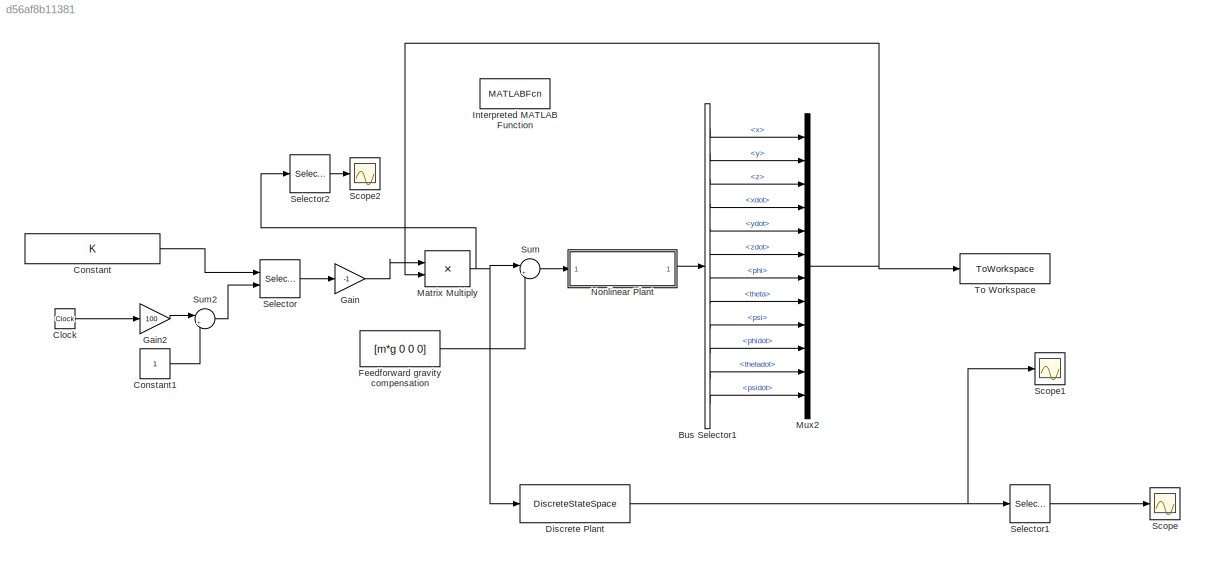
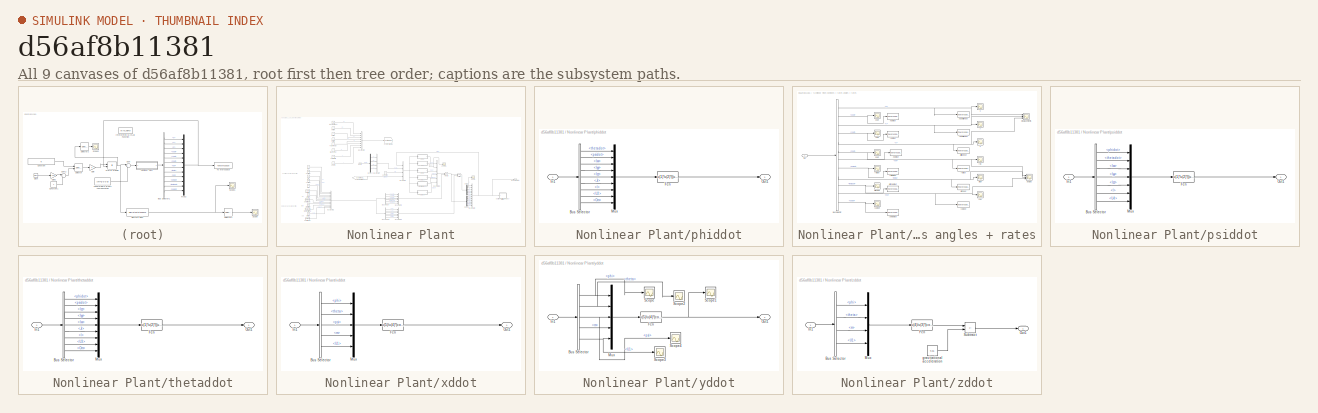
[diagram: thumbnail index - all 9 canvases of the model, root first then tree order]
MODEL slx_d56af8b11381
KIND model
CONFIG AbsTol = auto
CONFIG EnableMultiTasking = off
CONFIG FixedStep = .01
CONFIG MaxStep = auto
CONFIG MinStep = auto
CONFIG RelTol = 1e-3
CONFIG SampleTimeConstraint = Unconstrained
CONFIG Solver = FixedStepAuto
CONFIG SolverName = FixedStepAuto
CONFIG StartTime = 0.0
CONFIG StopTime = 4
BLOCK [BusSelector] Bus Selector1
  OutputSignals = x,y,z,xdot,ydot,zdot,phi,theta,psi,phidot,thetadot,psidot
  Ports = [1, 12]
BLOCK [Clock] Clock
BLOCK [Constant] Constant
  Value = K
BLOCK [Constant] Constant1
BLOCK [DiscreteStateSpace] Discrete Plant
  A = discrete.A
  B = discrete.B
  C = eye(12)
  D = zeros(12,4)
  InitialCondition = x_0_pitchroll
  SampleTime = .01
BLOCK [Constant] Feedforward gravity compensation
  Value = [m*g 0 0 0]
BLOCK [Gain] Gain
  Gain = -1
BLOCK [Gain] Gain2
  Gain = 100
BLOCK [MATLABFcn] Interpreted MATLAB Function
  Commented = on
  MATLABFcn = [g*m/(cos(u(7))*cos(u(8)))*0+m*g, 0, 0, 0]
  OutputDimensions = 4
  Ports = [1, 1]
BLOCK [Product] Matrix Multiply
  Multiplication = Matrix(*)
  Ports = [2, 1]
BLOCK [Mux] Mux2
  DisplayOption = bar
  Inputs = 12
  Ports = [12, 1]
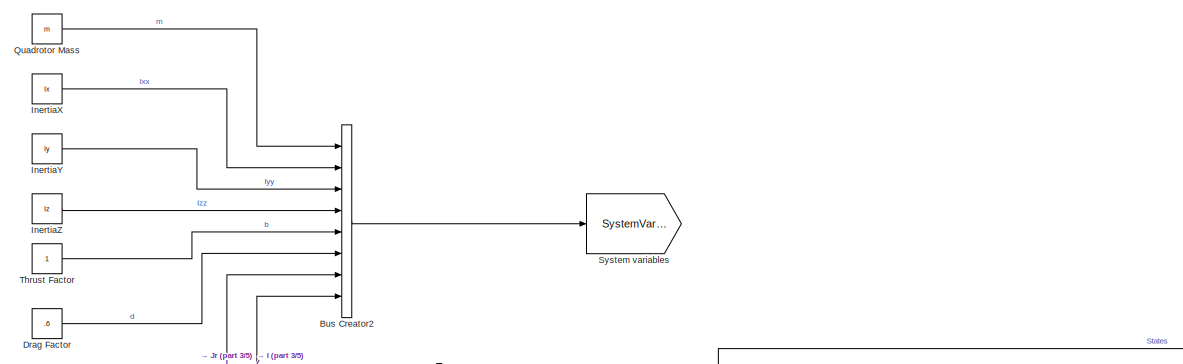
[diagram: Nonlinear Plant - part 1/5, top center region]
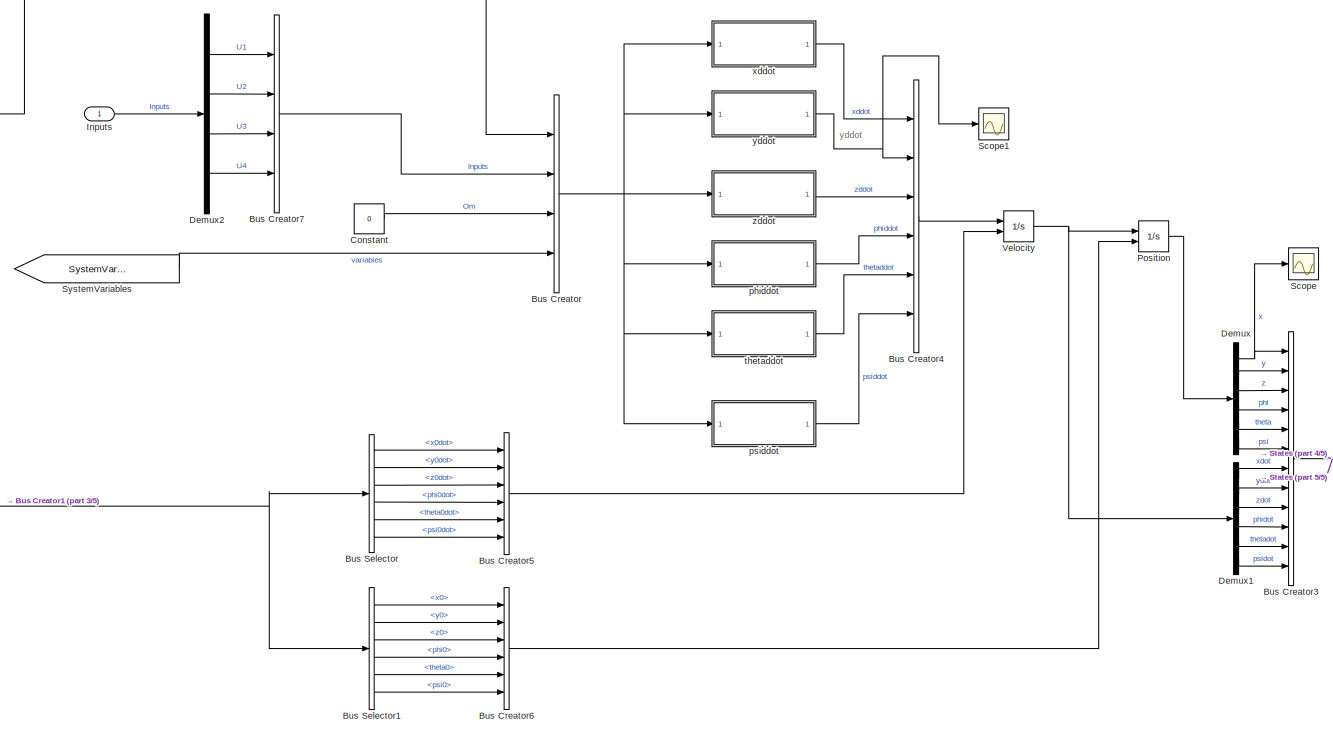
[diagram: Nonlinear Plant - part 2/5, central region]
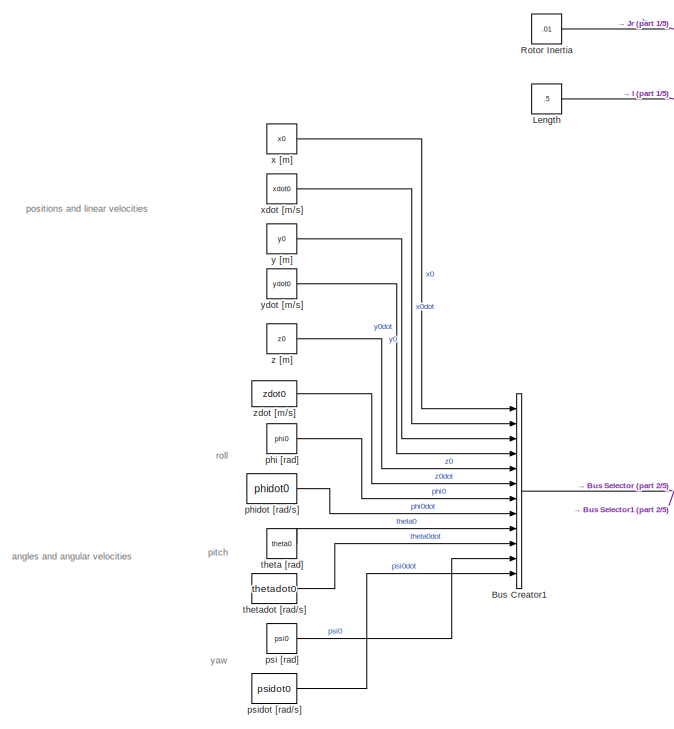
[diagram: Nonlinear Plant - part 3/5, bottom left region]
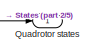
[diagram: Nonlinear Plant - part 4/5, middle right region]
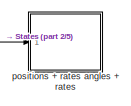
[diagram: Nonlinear Plant - part 5/5, bottom right region]
BLOCK [SubSystem] Nonlinear Plant
  Ports = [1, 1]
  RequestExecContextInheritance = off
BLOCK [BusCreator] Nonlinear Plant/Bus Creator
  DisplayOption = bar
  InheritFromInputs = on
  Inputs = 4
  Ports = [4, 1]
BLOCK [BusCreator] Nonlinear Plant/Bus Creator1
  DisplayOption = bar
  InheritFromInputs = on
  Inputs = 12
  Ports = [12, 1]
BLOCK [BusCreator] Nonlinear Plant/Bus Creator2
  DisplayOption = bar
  InheritFromInputs = on
  Inputs = 8
  Ports = [8, 1]
BLOCK [BusCreator] Nonlinear Plant/Bus Creator3
  DisplayOption = bar
  InheritFromInputs = on
  Inputs = 12
  Ports = [12, 1]
BLOCK [BusCreator] Nonlinear Plant/Bus Creator4
  DisplayOption = bar
  InheritFromInputs = on
  Inputs = 6
  Ports = [6, 1]
BLOCK [BusCreator] Nonlinear Plant/Bus Creator5
  DisplayOption = bar
  InheritFromInputs = on
  Inputs = 6
  Ports = [6, 1]
BLOCK [BusCreator] Nonlinear Plant/Bus Creator6
  DisplayOption = bar
  InheritFromInputs = on
  Inputs = 6
  Ports = [6, 1]
BLOCK [BusCreator] Nonlinear Plant/Bus Creator7
  DisplayOption = bar
  InheritFromInputs = on
  Inputs = 4
  Ports = [4, 1]
BLOCK [BusSelector] Nonlinear Plant/Bus Selector
  OutputSignals = x0dot,y0dot,z0dot,phi0dot,theta0dot,psi0dot
  Ports = [1, 6]
BLOCK [BusSelector] Nonlinear Plant/Bus Selector1
  OutputSignals = x0,y0,z0,phi0,theta0,psi0
  Ports = [1, 6]
BLOCK [Constant] Nonlinear Plant/Constant
  Value = 0
BLOCK [Demux] Nonlinear Plant/Demux
  Outputs = 6
  Ports = [1, 6]
BLOCK [Demux] Nonlinear Plant/Demux1
  Outputs = 6
  Ports = [1, 6]
BLOCK [Demux] Nonlinear Plant/Demux2
  Ports = [1, 4]
BLOCK [Constant] Nonlinear Plant/Drag Factor
  Value = .6
BLOCK [Constant] Nonlinear Plant/InertiaX
  Value = Ix
BLOCK [Constant] Nonlinear Plant/InertiaY
  Value = Iy
BLOCK [Constant] Nonlinear Plant/InertiaZ
  Value = Iz
BLOCK [Inport] Nonlinear Plant/Inputs
BLOCK [Constant] Nonlinear Plant/Length
  Value = .5
BLOCK [Integrator] Nonlinear Plant/Position
  InitialConditionSource = external
  Ports = [2, 1]
BLOCK [Constant] Nonlinear Plant/Quadrotor Mass
  Value = m
BLOCK [Outport] Nonlinear Plant/Quadrotor states
BLOCK [Constant] Nonlinear Plant/Rotor Inertia
  Value = .01
BLOCK [Scope] Nonlinear Plant/Scope
  Floating = off
  NumInputPorts = 1
  Ports = [1]
  ScopeSpecificationString = Simulink.scopes.TimeScopeBlockCfg('CurrentConfiguration', extmgr.ConfigurationSet(extmgr.Configuration('Core','General UI',true),extmgr.Configuration('Core','Source UI',true),extmgr.Configuration('Sources','WiredSimulink',true,'DataLoggingVariableName','ScopeData14'),extmgr.Configuration('Visuals','Time Domain',true,'SerializedDisplays',{struct('MinYLimReal','-12.10129','MaxYLimReal','0.23348','YL...<+1365ch>
BLOCK [Scope] Nonlinear Plant/Scope1
  Floating = off
  NumInputPorts = 1
  Ports = [1]
  ScopeSpecificationString = Simulink.scopes.TimeScopeBlockCfg('CurrentConfiguration', extmgr.ConfigurationSet(extmgr.Configuration('Core','General UI',true),extmgr.Configuration('Core','Source UI',true),extmgr.Configuration('Sources','WiredSimulink',true,'DataLoggingVariableName','ScopeData3'),extmgr.Configuration('Visuals','Time Domain',true,'SerializedDisplays',{struct('MinYLimReal','-11.38911','MaxYLimReal','4.40201','YLa...<+1393ch>
BLOCK [Goto] Nonlinear Plant/System variables
  GotoTag = SystemVariables
  TagVisibility = global
BLOCK [From] Nonlinear Plant/SystemVariables
  GotoTag = SystemVariables
  TagVisibility = global
BLOCK [Constant] Nonlinear Plant/Thrust Factor
BLOCK [Integrator] Nonlinear Plant/Velocity
  InitialConditionSource = external
  Ports = [2, 1]
BLOCK [Constant] Nonlinear Plant/phi [rad]
  Value = phi0
BLOCK [SubSystem] Nonlinear Plant/phiddot
  Ports = [1, 1]
  RequestExecContextInheritance = off
BLOCK [BusSelector] Nonlinear Plant/phiddot/Bus Selector
  OutputSignals = States.thetadot,States.psidot,variables.Ixx,variables.Iyy,variables.Izz,variables.Jr,variables.l,Inputs.U2,Om
  Ports = [1, 9]
BLOCK [Fcn] Nonlinear Plant/phiddot/Fcn
  Expr = u(1)*u(2)*((u(4)-u(5))/u(3))-(u(6)*u(1)*u(9)/u(3))+(u(7)*u(8)/u(3))
BLOCK [Inport] Nonlinear Plant/phiddot/In1
BLOCK [Mux] Nonlinear Plant/phiddot/Mux
  DisplayOption = bar
  Inputs = 9
  Ports = [9, 1]
BLOCK [Outport] Nonlinear Plant/phiddot/Out1
BLOCK [Constant] Nonlinear Plant/phidot [rad//s]
  Value = phidot0
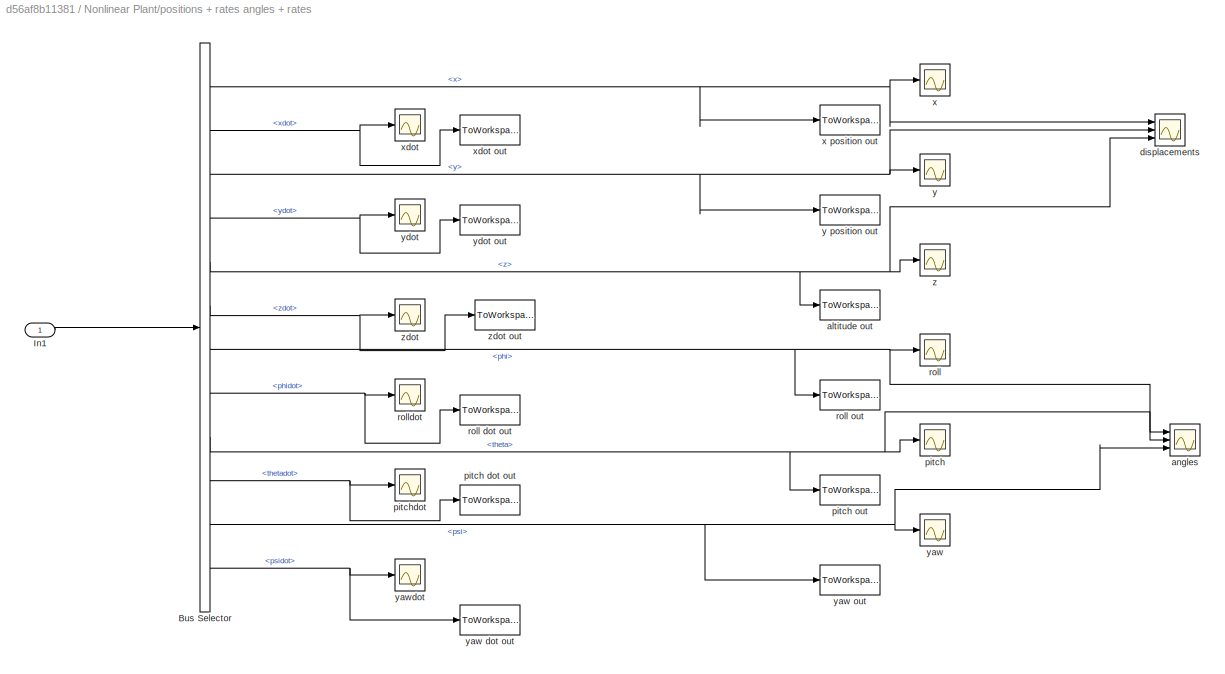
BLOCK [SubSystem] Nonlinear Plant/positions + rates angles + rates
  NameLocation = top
  Ports = [1]
  RequestExecContextInheritance = off
BLOCK [BusSelector] Nonlinear Plant/positions + rates angles + rates/Bus Selector
  OutputSignals = x,xdot,y,ydot,z,zdot,phi,phidot,theta,thetadot,psi,psidot
  Ports = [1, 12]
BLOCK [Inport] Nonlinear Plant/positions + rates angles + rates/In1
BLOCK [ToWorkspace] Nonlinear Plant/positions + rates angles + rates/altitude out
  MaxDataPoints = inf
  Ports = [1]
  SampleTime = -1
  VariableName = z
BLOCK [Scope] Nonlinear Plant/positions + rates angles + rates/angles
  Floating = off
  NumInputPorts = 3
  Ports = [3]
  ScopeSpecificationString = Simulink.scopes.TimeScopeBlockCfg('CurrentConfiguration', extmgr.ConfigurationSet(extmgr.Configuration('Core','General UI',true),extmgr.Configuration('Core','Source UI',true),extmgr.Configuration('Sources','WiredSimulink',true,'DataLoggingVariableName','ScopeData13','DataLoggingSaveFormat','StructureWithTime','DataLoggingDecimation','1','DataLoggingDecimateData',true),extmgr.Configuration('Visuals...<+3084ch>
BLOCK [Scope] Nonlinear Plant/positions + rates angles + rates/displacements
  Floating = off
  NumInputPorts = 3
  Ports = [3]
  ScopeSpecificationString = Simulink.scopes.TimeScopeBlockCfg('CurrentConfiguration', extmgr.ConfigurationSet(extmgr.Configuration('Core','General UI',true),extmgr.Configuration('Core','Source UI',true),extmgr.Configuration('Sources','WiredSimulink',true,'DataLoggingVariableName','ScopeData19','DataLoggingSaveFormat','StructureWithTime','DataLoggingDecimation','1','DataLoggingDecimateData',true),extmgr.Configuration('Visuals...<+3055ch>
BLOCK [Scope] Nonlinear Plant/positions + rates angles + rates/pitch
  Floating = off
  NumInputPorts = 1
  Ports = [1]
  ScopeSpecificationString = Simulink.scopes.TimeScopeBlockCfg('CurrentConfiguration', extmgr.ConfigurationSet(extmgr.Configuration('Core','General UI',true),extmgr.Configuration('Core','Source UI',true),extmgr.Configuration('Sources','WiredSimulink',true,'DataLoggingVariableName','ScopeData1','DataLoggingSaveFormat','StructureWithTime','DataLoggingDecimation','1','DataLoggingDecimateData',true),extmgr.Configuration('Visuals'...<+1736ch>
BLOCK [ToWorkspace] Nonlinear Plant/positions + rates angles + rates/pitch dot out
  MaxDataPoints = inf
  Ports = [1]
  SampleTime = -1
  VariableName = dotpitch
BLOCK [ToWorkspace] Nonlinear Plant/positions + rates angles + rates/pitch out
  MaxDataPoints = inf
  Ports = [1]
  SampleTime = -1
  VariableName = pitch
BLOCK [Scope] Nonlinear Plant/positions + rates angles + rates/pitchdot
  Floating = off
  NumInputPorts = 1
  Ports = [1]
  ScopeSpecificationString = Simulink.scopes.TimeScopeBlockCfg('CurrentConfiguration', extmgr.ConfigurationSet(extmgr.Configuration('Core','General UI',true),extmgr.Configuration('Core','Source UI',true),extmgr.Configuration('Sources','WiredSimulink',true,'DataLoggingVariableName','ScopeData4','DataLoggingSaveFormat','StructureWithTime','DataLoggingDecimation','1','DataLoggingDecimateData',true),extmgr.Configuration('Visuals'...<+1674ch>
BLOCK [Scope] Nonlinear Plant/positions + rates angles + rates/roll
  Floating = off
  NumInputPorts = 1
  Ports = [1]
  ScopeSpecificationString = Simulink.scopes.TimeScopeBlockCfg('CurrentConfiguration', extmgr.ConfigurationSet(extmgr.Configuration('Core','General UI',true),extmgr.Configuration('Core','Source UI',true),extmgr.Configuration('Sources','WiredSimulink',true,'DataLoggingSaveFormat','StructureWithTime','DataLoggingDecimation','1','DataLoggingDecimateData',true),extmgr.Configuration('Visuals','Time Domain',true,'SerializedDisplays...<+1707ch>
BLOCK [ToWorkspace] Nonlinear Plant/positions + rates angles + rates/roll dot out
  MaxDataPoints = inf
  Ports = [1]
  SampleTime = -1
  VariableName = dotroll
BLOCK [ToWorkspace] Nonlinear Plant/positions + rates angles + rates/roll out
  MaxDataPoints = inf
  Ports = [1]
  SampleTime = -1
  VariableName = roll
BLOCK [Scope] Nonlinear Plant/positions + rates angles + rates/rolldot
  Floating = off
  NumInputPorts = 1
  Ports = [1]
  ScopeSpecificationString = Simulink.scopes.TimeScopeBlockCfg('CurrentConfiguration', extmgr.ConfigurationSet(extmgr.Configuration('Core','General UI',true),extmgr.Configuration('Core','Source UI',true),extmgr.Configuration('Sources','WiredSimulink',true,'DataLoggingVariableName','ScopeData5','DataLoggingSaveFormat','StructureWithTime','DataLoggingDecimation','1','DataLoggingDecimateData',true),extmgr.Configuration('Visuals'...<+1724ch>
BLOCK [Scope] Nonlinear Plant/positions + rates angles + rates/x
  Floating = off
  NumInputPorts = 1
  Ports = [1]
  ScopeSpecificationString = Simulink.scopes.TimeScopeBlockCfg('CurrentConfiguration', extmgr.ConfigurationSet(extmgr.Configuration('Core','General UI',true),extmgr.Configuration('Core','Source UI',true),extmgr.Configuration('Sources','WiredSimulink',true,'DataLoggingVariableName','ScopeData6','DataLoggingSaveFormat','StructureWithTime','DataLoggingDecimation','1','DataLoggingDecimateData',true),extmgr.Configuration('Visuals'...<+1777ch>
BLOCK [ToWorkspace] Nonlinear Plant/positions + rates angles + rates/x position out
  MaxDataPoints = inf
  Ports = [1]
  SampleTime = -1
  VariableName = x
BLOCK [Scope] Nonlinear Plant/positions + rates angles + rates/xdot
  Floating = off
  NumInputPorts = 1
  Ports = [1]
  ScopeSpecificationString = Simulink.scopes.TimeScopeBlockCfg('CurrentConfiguration', extmgr.ConfigurationSet(extmgr.Configuration('Core','General UI',true),extmgr.Configuration('Core','Source UI',true),extmgr.Configuration('Sources','WiredSimulink',true,'DataLoggingVariableName','ScopeData7','DataLoggingSaveFormat','StructureWithTime','DataLoggingDecimation','1','DataLoggingDecimateData',true),extmgr.Configuration('Visuals'...<+1738ch>
BLOCK [ToWorkspace] Nonlinear Plant/positions + rates angles + rates/xdot out
  MaxDataPoints = inf
  Ports = [1]
  SampleTime = -1
  VariableName = xdot
BLOCK [Scope] Nonlinear Plant/positions + rates angles + rates/y
  Floating = off
  NumInputPorts = 1
  Ports = [1]
  ScopeSpecificationString = Simulink.scopes.TimeScopeBlockCfg('CurrentConfiguration', extmgr.ConfigurationSet(extmgr.Configuration('Core','General UI',true),extmgr.Configuration('Core','Source UI',true),extmgr.Configuration('Sources','WiredSimulink',true,'DataLoggingVariableName','ScopeData8','DataLoggingSaveFormat','StructureWithTime','DataLoggingDecimation','1','DataLoggingDecimateData',true),extmgr.Configuration('Visuals'...<+1767ch>
BLOCK [ToWorkspace] Nonlinear Plant/positions + rates angles + rates/y position out
  MaxDataPoints = inf
  Ports = [1]
  SampleTime = -1
  VariableName = y
BLOCK [Scope] Nonlinear Plant/positions + rates angles + rates/yaw
  Floating = off
  NumInputPorts = 1
  Ports = [1]
  ScopeSpecificationString = Simulink.scopes.TimeScopeBlockCfg('CurrentConfiguration', extmgr.ConfigurationSet(extmgr.Configuration('Core','General UI',true),extmgr.Configuration('Core','Source UI',true),extmgr.Configuration('Sources','WiredSimulink',true,'DataLoggingVariableName','ScopeData2','DataLoggingSaveFormat','StructureWithTime','DataLoggingDecimation','1','DataLoggingDecimateData',true),extmgr.Configuration('Visuals'...<+1679ch>
BLOCK [ToWorkspace] Nonlinear Plant/positions + rates angles + rates/yaw dot out
  MaxDataPoints = inf
  Ports = [1]
  SampleTime = -1
  VariableName = dotyaw
BLOCK [ToWorkspace] Nonlinear Plant/positions + rates angles + rates/yaw out
  MaxDataPoints = inf
  Ports = [1]
  SampleTime = -1
  VariableName = yaw
BLOCK [Scope] Nonlinear Plant/positions + rates angles + rates/yawdot
  Floating = off
  NumInputPorts = 1
  Ports = [1]
  ScopeSpecificationString = C++SS(StrPVP('Location','[5, 40, 1029, 759]'),StrPVP('Open','off'),MxPVP('AxesTitles',54,'struct(''axes1'',''%<SignalLabel>'')'),StrPVP('TimeRange','18'),StrPVP('YMin','-0.275'),StrPVP('YMax','0.15'),StrPVP('SaveName','ScopeData9'),StrPVP('DataFormat','StructureWithTime'),StrPVP('LimitDataPoints','off'),StrPVP('BlockParamSampleTime','0'),StrPVP('Decimation','1'),StrPVP('BlockParamSampleInput','off...<+3ch>
BLOCK [Scope] Nonlinear Plant/positions + rates angles + rates/ydot
  Floating = off
  NumInputPorts = 1
  Ports = [1]
  ScopeSpecificationString = Simulink.scopes.TimeScopeBlockCfg('CurrentConfiguration', extmgr.ConfigurationSet(extmgr.Configuration('Core','General UI',true),extmgr.Configuration('Core','Source UI',true),extmgr.Configuration('Sources','WiredSimulink',true,'DataLoggingVariableName','ScopeData10','DataLoggingSaveFormat','StructureWithTime','DataLoggingDecimation','1','DataLoggingDecimateData',true),extmgr.Configuration('Visuals...<+1749ch>
BLOCK [ToWorkspace] Nonlinear Plant/positions + rates angles + rates/ydot out
  MaxDataPoints = inf
  Ports = [1]
  SampleTime = -1
  VariableName = ydot
BLOCK [Scope] Nonlinear Plant/positions + rates angles + rates/z
  Floating = off
  NumInputPorts = 1
  Ports = [1]
  ScopeSpecificationString = Simulink.scopes.TimeScopeBlockCfg('CurrentConfiguration', extmgr.ConfigurationSet(extmgr.Configuration('Core','General UI',true),extmgr.Configuration('Core','Source UI',true),extmgr.Configuration('Sources','WiredSimulink',true,'DataLoggingVariableName','ScopeData11','DataLoggingSaveFormat','StructureWithTime','DataLoggingDecimation','1','DataLoggingDecimateData',true),extmgr.Configuration('Visuals...<+1761ch>
BLOCK [Scope] Nonlinear Plant/positions + rates angles + rates/zdot
  Floating = off
  NumInputPorts = 1
  Ports = [1]
  ScopeSpecificationString = Simulink.scopes.TimeScopeBlockCfg('CurrentConfiguration', extmgr.ConfigurationSet(extmgr.Configuration('Core','General UI',true),extmgr.Configuration('Core','Source UI',true),extmgr.Configuration('Sources','WiredSimulink',true,'DataLoggingVariableName','ScopeData12','DataLoggingSaveFormat','StructureWithTime','DataLoggingDecimation','1','DataLoggingDecimateData',true),extmgr.Configuration('Visuals...<+1785ch>
BLOCK [ToWorkspace] Nonlinear Plant/positions + rates angles + rates/zdot out
  MaxDataPoints = inf
  Ports = [1]
  SampleTime = -1
  VariableName = zdot
BLOCK [Constant] Nonlinear Plant/psi [rad]
  Value = psi0
BLOCK [SubSystem] Nonlinear Plant/psiddot
  Ports = [1, 1]
  RequestExecContextInheritance = off
BLOCK [BusSelector] Nonlinear Plant/psiddot/Bus Selector
  OutputSignals = States.phidot,States.thetadot,variables.Ixx,variables.Iyy,variables.Izz,variables.l,Inputs.U4
  Ports = [1, 7]
BLOCK [Fcn] Nonlinear Plant/psiddot/Fcn
  Expr = u(1)*u(2)*((u(3)-u(4))/u(5))+(u(6)*u(7)/u(5))
BLOCK [Inport] Nonlinear Plant/psiddot/In1
BLOCK [Mux] Nonlinear Plant/psiddot/Mux
  DisplayOption = bar
  Inputs = 7
  Ports = [7, 1]
BLOCK [Outport] Nonlinear Plant/psiddot/Out1
BLOCK [Constant] Nonlinear Plant/psidot [rad//s]
  Value = psidot0
BLOCK [Constant] Nonlinear Plant/theta [rad]
  Value = theta0
BLOCK [SubSystem] Nonlinear Plant/thetaddot
  Ports = [1, 1]
  RequestExecContextInheritance = off
BLOCK [BusSelector] Nonlinear Plant/thetaddot/Bus Selector
  OutputSignals = States.phidot,States.psidot,variables.Iyy,variables.Izz,variables.Ixx,variables.Jr,variables.l,Inputs.U3,Om
  Ports = [1, 9]
BLOCK [Fcn] Nonlinear Plant/thetaddot/Fcn
  Expr = u(1)*u(2)*((u(4)-u(5))/u(3))+(u(6)*u(1)*u(9)/u(3))+(u(7)*u(8)/u(3))
BLOCK [Inport] Nonlinear Plant/thetaddot/In1
BLOCK [Mux] Nonlinear Plant/thetaddot/Mux
  DisplayOption = bar
  Inputs = 9
  Ports = [9, 1]
BLOCK [Outport] Nonlinear Plant/thetaddot/Out1
BLOCK [Constant] Nonlinear Plant/thetadot [rad//s]
  Value = thetadot0
BLOCK [Constant] Nonlinear Plant/x [m]
  Value = x0
BLOCK [SubSystem] Nonlinear Plant/xddot
  Ports = [1, 1]
  RequestExecContextInheritance = off
BLOCK [BusSelector] Nonlinear Plant/xddot/Bus Selector
  OutputSignals = States.phi,States.theta,States.psi,variables.m,Inputs.U1
  Ports = [1, 5]
BLOCK [Fcn] Nonlinear Plant/xddot/Fcn
  Expr = u(5)/u(4)*(cos(u(1))*sin(u(2))*cos(u(3))+sin(u(1))*sin(u(3)))
BLOCK [Inport] Nonlinear Plant/xddot/In1
BLOCK [Mux] Nonlinear Plant/xddot/Mux
  DisplayOption = bar
  Inputs = 5
  Ports = [5, 1]
BLOCK [Outport] Nonlinear Plant/xddot/Out1
BLOCK [Constant] Nonlinear Plant/xdot [m//s]
  Value = xdot0
BLOCK [Constant] Nonlinear Plant/y [m]
  Value = y0
BLOCK [SubSystem] Nonlinear Plant/yddot
  Ports = [1, 1]
  RequestExecContextInheritance = off
BLOCK [BusSelector] Nonlinear Plant/yddot/Bus Selector
  OutputSignals = States.phi,States.theta,States.psi,variables.m,Inputs.U1
  Ports = [1, 5]
BLOCK [Fcn] Nonlinear Plant/yddot/Fcn
  Expr = u(5)/u(4)*(cos(u(1))*sin(u(2))*sin(u(3))-sin(u(1))*cos(u(3)))
BLOCK [Inport] Nonlinear Plant/yddot/In1
BLOCK [Mux] Nonlinear Plant/yddot/Mux
  DisplayOption = bar
  Inputs = 5
  Ports = [5, 1]
BLOCK [Outport] Nonlinear Plant/yddot/Out1
BLOCK [Scope] Nonlinear Plant/yddot/Scope
  Floating = off
  NumInputPorts = 1
  Ports = [1]
  ScopeSpecificationString = Simulink.scopes.TimeScopeBlockCfg('CurrentConfiguration', extmgr.ConfigurationSet(extmgr.Configuration('Core','General UI',true),extmgr.Configuration('Core','Source UI',true),extmgr.Configuration('Sources','WiredSimulink',true,'DataLoggingVariableName','ScopeData6'),extmgr.Configuration('Visuals','Time Domain',true,'SerializedDisplays',{struct('MinYLimReal','-0.42918','MaxYLimReal','3.86266','YLab...<+1389ch>
BLOCK [Scope] Nonlinear Plant/yddot/Scope1
  Floating = off
  NumInputPorts = 1
  Ports = [1]
  ScopeSpecificationString = Simulink.scopes.TimeScopeBlockCfg('CurrentConfiguration', extmgr.ConfigurationSet(extmgr.Configuration('Core','General UI',true),extmgr.Configuration('Core','Source UI',true),extmgr.Configuration('Sources','WiredSimulink',true,'DataLoggingVariableName','ScopeData7'),extmgr.Configuration('Visuals','Time Domain',true,'SerializedDisplays',{struct('MinYLimReal','-11.69758','MaxYLimReal','7.1894','YLab...<+1408ch>
BLOCK [Scope] Nonlinear Plant/yddot/Scope2
  Floating = off
  NumInputPorts = 1
  Ports = [1]
  ScopeSpecificationString = Simulink.scopes.TimeScopeBlockCfg('CurrentConfiguration', extmgr.ConfigurationSet(extmgr.Configuration('Core','General UI',true),extmgr.Configuration('Core','Source UI',true),extmgr.Configuration('Sources','WiredSimulink',true,'DataLoggingVariableName','ScopeData8'),extmgr.Configuration('Visuals','Time Domain',true,'SerializedDisplays',{struct('MinYLimReal','-1.76412','MaxYLimReal','0.19601','YLab...<+1366ch>
BLOCK [Scope] Nonlinear Plant/yddot/Scope3
  Floating = off
  NumInputPorts = 1
  Ports = [1]
  ScopeSpecificationString = Simulink.scopes.TimeScopeBlockCfg('CurrentConfiguration', extmgr.ConfigurationSet(extmgr.Configuration('Core','General UI',true),extmgr.Configuration('Core','Source UI',true),extmgr.Configuration('Sources','WiredSimulink',true,'DataLoggingVariableName','ScopeData9'),extmgr.Configuration('Visuals','Time Domain',true,'SerializedDisplays',{struct('MinYLimReal','3.59108','MaxYLimReal','5.59108','YLabe...<+1386ch>
BLOCK [Scope] Nonlinear Plant/yddot/Scope4
  Floating = off
  NumInputPorts = 1
  Ports = [1]
  ScopeSpecificationString = Simulink.scopes.TimeScopeBlockCfg('CurrentConfiguration', extmgr.ConfigurationSet(extmgr.Configuration('Core','General UI',true),extmgr.Configuration('Core','Source UI',true),extmgr.Configuration('Sources','WiredSimulink',true,'DataLoggingVariableName','ScopeData11'),extmgr.Configuration('Visuals','Time Domain',true,'SerializedDisplays',{struct('MinYLimReal','-1.00000','MaxYLimReal','1.00000','YLa...<+1365ch>
BLOCK [Constant] Nonlinear Plant/ydot [m//s]
  Value = ydot0
BLOCK [Constant] Nonlinear Plant/z [m]
  Value = z0
BLOCK [SubSystem] Nonlinear Plant/zddot
  Ports = [1, 1]
  RequestExecContextInheritance = off
BLOCK [BusSelector] Nonlinear Plant/zddot/Bus Selector
  OutputSignals = States.phi,States.theta,variables.m,Inputs.U1
  Ports = [1, 4]
BLOCK [Fcn] Nonlinear Plant/zddot/Fcn
  Expr = u(4)/u(3)*(cos(u(1))*cos(u(2)))
BLOCK [Inport] Nonlinear Plant/zddot/In1
BLOCK [Mux] Nonlinear Plant/zddot/Mux
  DisplayOption = bar
  Ports = [4, 1]
BLOCK [Outport] Nonlinear Plant/zddot/Out1
BLOCK [Sum] Nonlinear Plant/zddot/Subtract
  IconShape = rectangular
  Inputs = +-
  Ports = [2, 1]
BLOCK [Constant] Nonlinear Plant/zddot/gravitational acceleration
  Value = 9.81
BLOCK [Constant] Nonlinear Plant/zdot [m//s]
  Value = zdot0
BLOCK [Scope] Scope
  Floating = off
  NumInputPorts = 1
  Ports = [1]
  ScopeSpecificationString = Simulink.scopes.TimeScopeBlockCfg('CurrentConfiguration', extmgr.ConfigurationSet(extmgr.Configuration('Core','General UI',true),extmgr.Configuration('Core','Source UI',true),extmgr.Configuration('Sources','WiredSimulink',true,'DataLoggingVariableName','ScopeData2'),extmgr.Configuration('Visuals','Time Domain',true,'SerializedDisplays',{struct('MinYLimReal','-6.825','MaxYLimReal','0.95226','YLabel...<+1385ch>
BLOCK [Scope] Scope1
  Floating = off
  NumInputPorts = 1
  Ports = [1]
  ScopeSpecificationString = Simulink.scopes.TimeScopeBlockCfg('CurrentConfiguration', extmgr.ConfigurationSet(extmgr.Configuration('Core','General UI',true),extmgr.Configuration('Core','Source UI',true),extmgr.Configuration('Sources','WiredSimulink',true,'DataLoggingVariableName','ScopeData1'),extmgr.Configuration('Visuals','Time Domain',true,'SerializedDisplays',{struct('MinYLimReal','-0.55576','MaxYLimReal','0.22735','YLab...<+1661ch>
BLOCK [Scope] Scope2
  Floating = off
  NumInputPorts = 1
  Ports = [1]
  ScopeSpecificationString = Simulink.scopes.TimeScopeBlockCfg('CurrentConfiguration', extmgr.ConfigurationSet(extmgr.Configuration('Core','General UI',true),extmgr.Configuration('Core','Source UI',true),extmgr.Configuration('Sources','WiredSimulink',true,'DataLoggingVariableName','ScopeData2'),extmgr.Configuration('Visuals','Time Domain',true,'SerializedDisplays',{struct('MinYLimReal','-1.00000','MaxYLimReal','1.00000','YLab...<+1393ch>
BLOCK [Selector] Selector
  IndexOptions = Select all,Select all,Index vector (port)
  Indices = [1 3],1,1
  InputPortWidth = 3
  NumberOfDimensions = 3
  OutputSizes = 1,1,1
  Ports = [2, 1]
BLOCK [Selector] Selector1
  IndexOptions = Index vector (dialog)
  Indices = [8]
  InputPortWidth = 12
  OutputSizes = 1
  Ports = [1, 1]
BLOCK [Selector] Selector2
  IndexOptions = Index vector (dialog)
  Indices = [1]
  InputPortWidth = 4
  OutputSizes = 1
  Ports = [1, 1]
BLOCK [Sum] Sum
  Inputs = |++
  Ports = [2, 1]
BLOCK [Sum] Sum2
  Inputs = |++
  Ports = [2, 1]
BLOCK [ToWorkspace] To Workspace
  FixptAsFi = on
  MaxDataPoints = inf
  Ports = [1]
  SampleTime = -1
  SaveFormat = Timeseries
  VariableName = allVals
ANNOTATION Nonlinear Plant: angles and angular velocities
ANNOTATION Nonlinear Plant: pitch
ANNOTATION Nonlinear Plant: positions and linear velocities
ANNOTATION Nonlinear Plant: roll
ANNOTATION Nonlinear Plant: yaw
ANNOTATION Nonlinear Plant: yddot
LINE Bus Selector1:1 -> Mux2:1
LINE Bus Selector1:10 -> Mux2:10
LINE Bus Selector1:11 -> Mux2:11
LINE Bus Selector1:12 -> Mux2:12
LINE Bus Selector1:2 -> Mux2:2
LINE Bus Selector1:3 -> Mux2:3
LINE Bus Selector1:4 -> Mux2:4
LINE Bus Selector1:5 -> Mux2:5
LINE Bus Selector1:6 -> Mux2:6
LINE Bus Selector1:7 -> Mux2:7
LINE Bus Selector1:8 -> Mux2:8
LINE Bus Selector1:9 -> Mux2:9
LINE Clock:1 -> Gain2:1
LINE Constant1:1 -> Sum2:2
LINE Constant:1 -> Selector:1
NET Discrete Plant:1 -> Scope1:1, Selector1:1
LINE Feedforward gravity compensation:1 -> Sum:2
LINE Gain2:1 -> Sum2:1
LINE Gain:1 -> Matrix Multiply:1
NET Matrix Multiply:1 -> Discrete Plant:1, Selector2:1, Sum:1
NET Mux2:1 -> Matrix Multiply:2, To Workspace:1
NET Nonlinear Plant/Bus Creator1:1 -> Nonlinear Plant/Bus Selector1:1, Nonlinear Plant/Bus Selector:1
LINE Nonlinear Plant/Bus Creator2:1 -> Nonlinear Plant/System variables:1
NET Nonlinear Plant/Bus Creator3:1 -> Nonlinear Plant/Bus Creator:1, Nonlinear Plant/Quadrotor states:1, Nonlinear Plant/positions + rates angles + rates:1
LINE Nonlinear Plant/Bus Creator4:1 -> Nonlinear Plant/Velocity:1
LINE Nonlinear Plant/Bus Creator5:1 -> Nonlinear Plant/Velocity:2
LINE Nonlinear Plant/Bus Creator6:1 -> Nonlinear Plant/Position:2
LINE Nonlinear Plant/Bus Creator7:1 -> Nonlinear Plant/Bus Creator:2
NET Nonlinear Plant/Bus Creator:1 -> Nonlinear Plant/phiddot:1, Nonlinear Plant/psiddot:1, Nonlinear Plant/thetaddot:1, Nonlinear Plant/xddot:1, Nonlinear Plant/yddot:1, Nonlinear Plant/zddot:1
LINE Nonlinear Plant/Bus Selector1:1 -> Nonlinear Plant/Bus Creator6:1
LINE Nonlinear Plant/Bus Selector1:2 -> Nonlinear Plant/Bus Creator6:2
LINE Nonlinear Plant/Bus Selector1:3 -> Nonlinear Plant/Bus Creator6:3
LINE Nonlinear Plant/Bus Selector1:4 -> Nonlinear Plant/Bus Creator6:4
LINE Nonlinear Plant/Bus Selector1:5 -> Nonlinear Plant/Bus Creator6:5
LINE Nonlinear Plant/Bus Selector1:6 -> Nonlinear Plant/Bus Creator6:6
LINE Nonlinear Plant/Bus Selector:1 -> Nonlinear Plant/Bus Creator5:1
LINE Nonlinear Plant/Bus Selector:2 -> Nonlinear Plant/Bus Creator5:2
LINE Nonlinear Plant/Bus Selector:3 -> Nonlinear Plant/Bus Creator5:3
LINE Nonlinear Plant/Bus Selector:4 -> Nonlinear Plant/Bus Creator5:4
LINE Nonlinear Plant/Bus Selector:5 -> Nonlinear Plant/Bus Creator5:5
LINE Nonlinear Plant/Bus Selector:6 -> Nonlinear Plant/Bus Creator5:6
LINE Nonlinear Plant/Constant:1 -> Nonlinear Plant/Bus Creator:3
LINE Nonlinear Plant/Demux1:1 -> Nonlinear Plant/Bus Creator3:7
LINE Nonlinear Plant/Demux1:2 -> Nonlinear Plant/Bus Creator3:8
LINE Nonlinear Plant/Demux1:3 -> Nonlinear Plant/Bus Creator3:9
LINE Nonlinear Plant/Demux1:4 -> Nonlinear Plant/Bus Creator3:10
LINE Nonlinear Plant/Demux1:5 -> Nonlinear Plant/Bus Creator3:11
LINE Nonlinear Plant/Demux1:6 -> Nonlinear Plant/Bus Creator3:12
LINE Nonlinear Plant/Demux2:1 -> Nonlinear Plant/Bus Creator7:1
LINE Nonlinear Plant/Demux2:2 -> Nonlinear Plant/Bus Creator7:2
LINE Nonlinear Plant/Demux2:3 -> Nonlinear Plant/Bus Creator7:3
LINE Nonlinear Plant/Demux2:4 -> Nonlinear Plant/Bus Creator7:4
NET Nonlinear Plant/Demux:1 -> Nonlinear Plant/Bus Creator3:1, Nonlinear Plant/Scope:1
LINE Nonlinear Plant/Demux:2 -> Nonlinear Plant/Bus Creator3:2
LINE Nonlinear Plant/Demux:3 -> Nonlinear Plant/Bus Creator3:3
LINE Nonlinear Plant/Demux:4 -> Nonlinear Plant/Bus Creator3:4
LINE Nonlinear Plant/Demux:5 -> Nonlinear Plant/Bus Creator3:5
LINE Nonlinear Plant/Demux:6 -> Nonlinear Plant/Bus Creator3:6
LINE Nonlinear Plant/Drag Factor:1 -> Nonlinear Plant/Bus Creator2:6
LINE Nonlinear Plant/InertiaX:1 -> Nonlinear Plant/Bus Creator2:2
LINE Nonlinear Plant/InertiaY:1 -> Nonlinear Plant/Bus Creator2:3
LINE Nonlinear Plant/InertiaZ:1 -> Nonlinear Plant/Bus Creator2:4
LINE Nonlinear Plant/Inputs:1 -> Nonlinear Plant/Demux2:1
LINE Nonlinear Plant/Length:1 -> Nonlinear Plant/Bus Creator2:8
LINE Nonlinear Plant/Position:1 -> Nonlinear Plant/Demux:1
LINE Nonlinear Plant/Quadrotor Mass:1 -> Nonlinear Plant/Bus Creator2:1
LINE Nonlinear Plant/Rotor Inertia:1 -> Nonlinear Plant/Bus Creator2:7
LINE Nonlinear Plant/SystemVariables:1 -> Nonlinear Plant/Bus Creator:4
LINE Nonlinear Plant/Thrust Factor:1 -> Nonlinear Plant/Bus Creator2:5
NET Nonlinear Plant/Velocity:1 -> Nonlinear Plant/Demux1:1, Nonlinear Plant/Position:1
LINE Nonlinear Plant/phi [rad]:1 -> Nonlinear Plant/Bus Creator1:7
LINE Nonlinear Plant/phiddot/Bus Selector:1 -> Nonlinear Plant/phiddot/Mux:1
LINE Nonlinear Plant/phiddot/Bus Selector:2 -> Nonlinear Plant/phiddot/Mux:2
LINE Nonlinear Plant/phiddot/Bus Selector:3 -> Nonlinear Plant/phiddot/Mux:3
LINE Nonlinear Plant/phiddot/Bus Selector:4 -> Nonlinear Plant/phiddot/Mux:4
LINE Nonlinear Plant/phiddot/Bus Selector:5 -> Nonlinear Plant/phiddot/Mux:5
LINE Nonlinear Plant/phiddot/Bus Selector:6 -> Nonlinear Plant/phiddot/Mux:6
LINE Nonlinear Plant/phiddot/Bus Selector:7 -> Nonlinear Plant/phiddot/Mux:7
LINE Nonlinear Plant/phiddot/Bus Selector:8 -> Nonlinear Plant/phiddot/Mux:8
LINE Nonlinear Plant/phiddot/Bus Selector:9 -> Nonlinear Plant/phiddot/Mux:9
LINE Nonlinear Plant/phiddot/Fcn:1 -> Nonlinear Plant/phiddot/Out1:1
LINE Nonlinear Plant/phiddot/In1:1 -> Nonlinear Plant/phiddot/Bus Selector:1
LINE Nonlinear Plant/phiddot/Mux:1 -> Nonlinear Plant/phiddot/Fcn:1
LINE Nonlinear Plant/phiddot:1 -> Nonlinear Plant/Bus Creator4:4
LINE Nonlinear Plant/phidot [rad//s]:1 -> Nonlinear Plant/Bus Creator1:8
NET Nonlinear Plant/positions + rates angles + rates/Bus Selector:1 -> Nonlinear Plant/positions + rates angles + rates/displacements:1, Nonlinear Plant/positions + rates angles + rates/x position out:1, Nonlinear Plant/positions + rates angles + rates/x:1
NET Nonlinear Plant/positions + rates angles + rates/Bus Selector:10 -> Nonlinear Plant/positions + rates angles + rates/pitch dot out:1, Nonlinear Plant/positions + rates angles + rates/pitchdot:1
NET Nonlinear Plant/positions + rates angles + rates/Bus Selector:11 -> Nonlinear Plant/positions + rates angles + rates/angles:3, Nonlinear Plant/positions + rates angles + rates/yaw out:1, Nonlinear Plant/positions + rates angles + rates/yaw:1
NET Nonlinear Plant/positions + rates angles + rates/Bus Selector:12 -> Nonlinear Plant/positions + rates angles + rates/yaw dot out:1, Nonlinear Plant/positions + rates angles + rates/yawdot:1
NET Nonlinear Plant/positions + rates angles + rates/Bus Selector:2 -> Nonlinear Plant/positions + rates angles + rates/xdot out:1, Nonlinear Plant/positions + rates angles + rates/xdot:1
NET Nonlinear Plant/positions + rates angles + rates/Bus Selector:3 -> Nonlinear Plant/positions + rates angles + rates/displacements:2, Nonlinear Plant/positions + rates angles + rates/y position out:1, Nonlinear Plant/positions + rates angles + rates/y:1
NET Nonlinear Plant/positions + rates angles + rates/Bus Selector:4 -> Nonlinear Plant/positions + rates angles + rates/ydot out:1, Nonlinear Plant/positions + rates angles + rates/ydot:1
NET Nonlinear Plant/positions + rates angles + rates/Bus Selector:5 -> Nonlinear Plant/positions + rates angles + rates/altitude out:1, Nonlinear Plant/positions + rates angles + rates/displacements:3, Nonlinear Plant/positions + rates angles + rates/z:1
NET Nonlinear Plant/positions + rates angles + rates/Bus Selector:6 -> Nonlinear Plant/positions + rates angles + rates/zdot out:1, Nonlinear Plant/positions + rates angles + rates/zdot:1
NET Nonlinear Plant/positions + rates angles + rates/Bus Selector:7 -> Nonlinear Plant/positions + rates angles + rates/angles:1, Nonlinear Plant/positions + rates angles + rates/roll out:1, Nonlinear Plant/positions + rates angles + rates/roll:1
NET Nonlinear Plant/positions + rates angles + rates/Bus Selector:8 -> Nonlinear Plant/positions + rates angles + rates/roll dot out:1, Nonlinear Plant/positions + rates angles + rates/rolldot:1
NET Nonlinear Plant/positions + rates angles + rates/Bus Selector:9 -> Nonlinear Plant/positions + rates angles + rates/angles:2, Nonlinear Plant/positions + rates angles + rates/pitch out:1, Nonlinear Plant/positions + rates angles + rates/pitch:1
LINE Nonlinear Plant/positions + rates angles + rates/In1:1 -> Nonlinear Plant/positions + rates angles + rates/Bus Selector:1
LINE Nonlinear Plant/psi [rad]:1 -> Nonlinear Plant/Bus Creator1:11
LINE Nonlinear Plant/psiddot/Bus Selector:1 -> Nonlinear Plant/psiddot/Mux:1
LINE Nonlinear Plant/psiddot/Bus Selector:2 -> Nonlinear Plant/psiddot/Mux:2
LINE Nonlinear Plant/psiddot/Bus Selector:3 -> Nonlinear Plant/psiddot/Mux:3
LINE Nonlinear Plant/psiddot/Bus Selector:4 -> Nonlinear Plant/psiddot/Mux:4
LINE Nonlinear Plant/psiddot/Bus Selector:5 -> Nonlinear Plant/psiddot/Mux:5
LINE Nonlinear Plant/psiddot/Bus Selector:6 -> Nonlinear Plant/psiddot/Mux:6
LINE Nonlinear Plant/psiddot/Bus Selector:7 -> Nonlinear Plant/psiddot/Mux:7
LINE Nonlinear Plant/psiddot/Fcn:1 -> Nonlinear Plant/psiddot/Out1:1
LINE Nonlinear Plant/psiddot/In1:1 -> Nonlinear Plant/psiddot/Bus Selector:1
LINE Nonlinear Plant/psiddot/Mux:1 -> Nonlinear Plant/psiddot/Fcn:1
LINE Nonlinear Plant/psiddot:1 -> Nonlinear Plant/Bus Creator4:6
LINE Nonlinear Plant/psidot [rad//s]:1 -> Nonlinear Plant/Bus Creator1:12
LINE Nonlinear Plant/theta [rad]:1 -> Nonlinear Plant/Bus Creator1:9
LINE Nonlinear Plant/thetaddot/Bus Selector:1 -> Nonlinear Plant/thetaddot/Mux:1
LINE Nonlinear Plant/thetaddot/Bus Selector:2 -> Nonlinear Plant/thetaddot/Mux:2
LINE Nonlinear Plant/thetaddot/Bus Selector:3 -> Nonlinear Plant/thetaddot/Mux:4
LINE Nonlinear Plant/thetaddot/Bus Selector:4 -> Nonlinear Plant/thetaddot/Mux:3
LINE Nonlinear Plant/thetaddot/Bus Selector:5 -> Nonlinear Plant/thetaddot/Mux:5
LINE Nonlinear Plant/thetaddot/Bus Selector:6 -> Nonlinear Plant/thetaddot/Mux:6
LINE Nonlinear Plant/thetaddot/Bus Selector:7 -> Nonlinear Plant/thetaddot/Mux:7
LINE Nonlinear Plant/thetaddot/Bus Selector:8 -> Nonlinear Plant/thetaddot/Mux:8
LINE Nonlinear Plant/thetaddot/Bus Selector:9 -> Nonlinear Plant/thetaddot/Mux:9
LINE Nonlinear Plant/thetaddot/Fcn:1 -> Nonlinear Plant/thetaddot/Out1:1
LINE Nonlinear Plant/thetaddot/In1:1 -> Nonlinear Plant/thetaddot/Bus Selector:1
LINE Nonlinear Plant/thetaddot/Mux:1 -> Nonlinear Plant/thetaddot/Fcn:1
LINE Nonlinear Plant/thetaddot:1 -> Nonlinear Plant/Bus Creator4:5
LINE Nonlinear Plant/thetadot [rad//s]:1 -> Nonlinear Plant/Bus Creator1:10
LINE Nonlinear Plant/x [m]:1 -> Nonlinear Plant/Bus Creator1:1
LINE Nonlinear Plant/xddot/Bus Selector:1 -> Nonlinear Plant/xddot/Mux:1
LINE Nonlinear Plant/xddot/Bus Selector:2 -> Nonlinear Plant/xddot/Mux:2
LINE Nonlinear Plant/xddot/Bus Selector:3 -> Nonlinear Plant/xddot/Mux:3
LINE Nonlinear Plant/xddot/Bus Selector:4 -> Nonlinear Plant/xddot/Mux:4
LINE Nonlinear Plant/xddot/Bus Selector:5 -> Nonlinear Plant/xddot/Mux:5
LINE Nonlinear Plant/xddot/Fcn:1 -> Nonlinear Plant/xddot/Out1:1
LINE Nonlinear Plant/xddot/In1:1 -> Nonlinear Plant/xddot/Bus Selector:1
LINE Nonlinear Plant/xddot/Mux:1 -> Nonlinear Plant/xddot/Fcn:1
LINE Nonlinear Plant/xddot:1 -> Nonlinear Plant/Bus Creator4:1
LINE Nonlinear Plant/xdot [m//s]:1 -> Nonlinear Plant/Bus Creator1:2
LINE Nonlinear Plant/y [m]:1 -> Nonlinear Plant/Bus Creator1:3
NET Nonlinear Plant/yddot/Bus Selector:1 -> Nonlinear Plant/yddot/Mux:1, Nonlinear Plant/yddot/Scope:1
NET Nonlinear Plant/yddot/Bus Selector:2 -> Nonlinear Plant/yddot/Mux:2, Nonlinear Plant/yddot/Scope2:1
NET Nonlinear Plant/yddot/Bus Selector:3 -> Nonlinear Plant/yddot/Mux:3, Nonlinear Plant/yddot/Scope4:1
LINE Nonlinear Plant/yddot/Bus Selector:4 -> Nonlinear Plant/yddot/Mux:4
NET Nonlinear Plant/yddot/Bus Selector:5 -> Nonlinear Plant/yddot/Mux:5, Nonlinear Plant/yddot/Scope3:1
NET Nonlinear Plant/yddot/Fcn:1 -> Nonlinear Plant/yddot/Out1:1, Nonlinear Plant/yddot/Scope1:1
LINE Nonlinear Plant/yddot/In1:1 -> Nonlinear Plant/yddot/Bus Selector:1
LINE Nonlinear Plant/yddot/Mux:1 -> Nonlinear Plant/yddot/Fcn:1
NET Nonlinear Plant/yddot:1 -> Nonlinear Plant/Bus Creator4:2, Nonlinear Plant/Scope1:1
LINE Nonlinear Plant/ydot [m//s]:1 -> Nonlinear Plant/Bus Creator1:4
LINE Nonlinear Plant/z [m]:1 -> Nonlinear Plant/Bus Creator1:5
LINE Nonlinear Plant/zddot/Bus Selector:1 -> Nonlinear Plant/zddot/Mux:1
LINE Nonlinear Plant/zddot/Bus Selector:2 -> Nonlinear Plant/zddot/Mux:2
LINE Nonlinear Plant/zddot/Bus Selector:3 -> Nonlinear Plant/zddot/Mux:3
LINE Nonlinear Plant/zddot/Bus Selector:4 -> Nonlinear Plant/zddot/Mux:4
LINE Nonlinear Plant/zddot/Fcn:1 -> Nonlinear Plant/zddot/Subtract:1
LINE Nonlinear Plant/zddot/In1:1 -> Nonlinear Plant/zddot/Bus Selector:1
LINE Nonlinear Plant/zddot/Mux:1 -> Nonlinear Plant/zddot/Fcn:1
LINE Nonlinear Plant/zddot/Subtract:1 -> Nonlinear Plant/zddot/Out1:1
LINE Nonlinear Plant/zddot/gravitational acceleration:1 -> Nonlinear Plant/zddot/Subtract:2
LINE Nonlinear Plant/zddot:1 -> Nonlinear Plant/Bus Creator4:3
LINE Nonlinear Plant/zdot [m//s]:1 -> Nonlinear Plant/Bus Creator1:6
LINE Nonlinear Plant:1 -> Bus Selector1:1
LINE Selector1:1 -> Scope:1
LINE Selector2:1 -> Scope2:1
LINE Selector:1 -> Gain:1
LINE Sum2:1 -> Selector:2
LINE Sum:1 -> Nonlinear Plant:1
note: NET lines group one-source signal fan-out (src -> all destinations, sorted); 1:1 wires keep LINE
